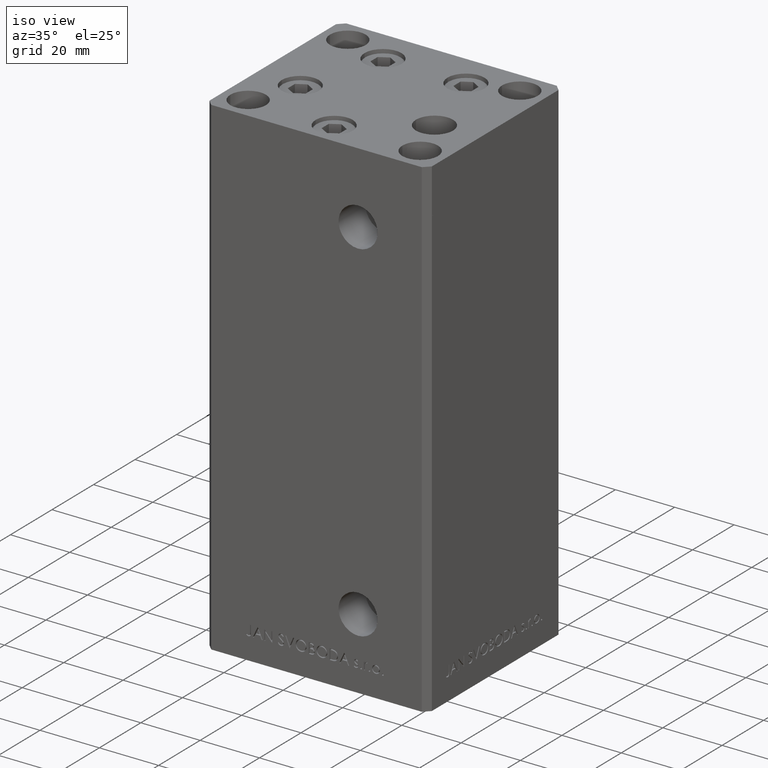
[diagram: clean part render]
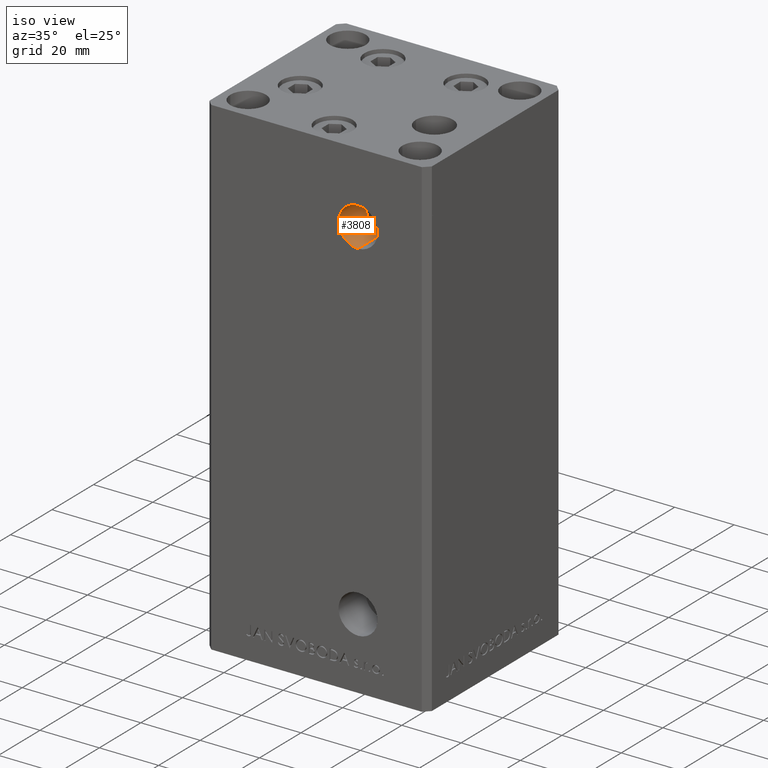
[diagram: same view with one face highlighted and labeled with its STEP entity id]
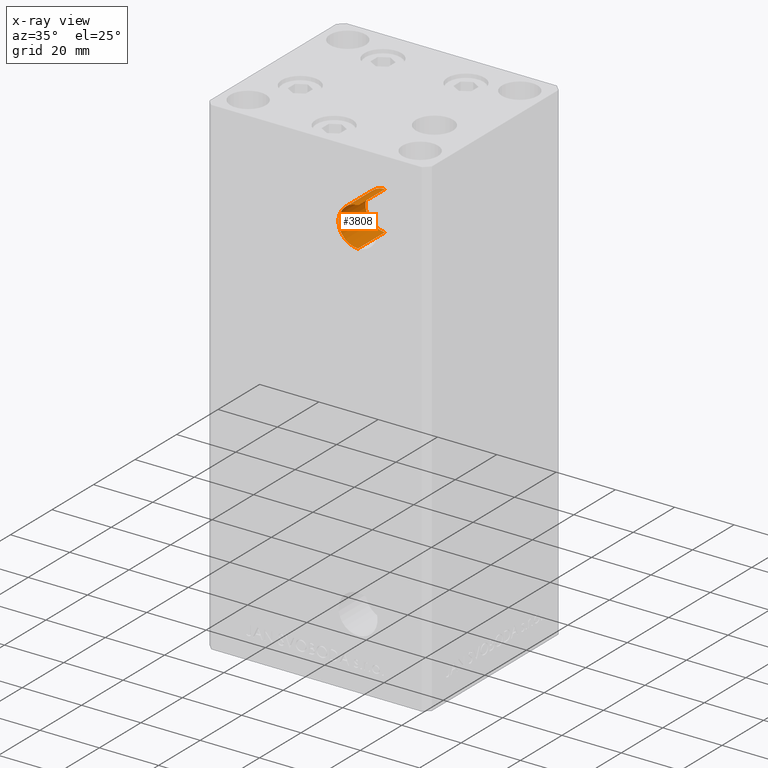
[diagram: x-ray of the same camera — body ghosted, the highlighted face saturated]
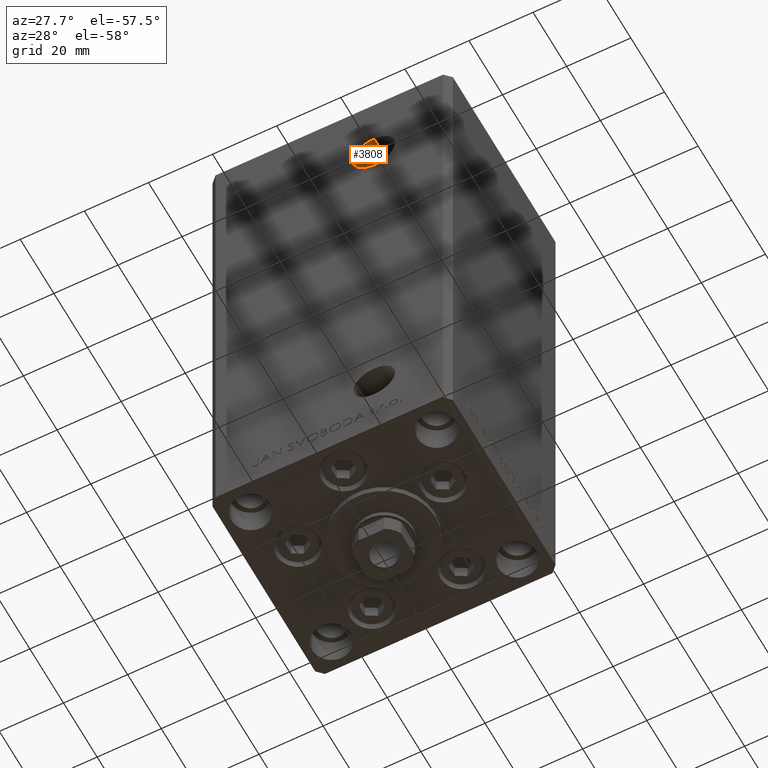
[diagram: same view with one face highlighted and labeled with its STEP entity id]
A machine part, iso view. The second image highlights one B-rep face of the part: STEP entity #3808.
The next image is the same camera in x-ray: the body ghosted, the highlighted face saturated — about 0% of this face is hidden behind the body in this view.
A second angle (auxiliary view) of the same face is appended — the face is thin or edge-on in the first view.
In plain terms, the highlighted cylindrical surface (edge-blend (fillet) strip) has radius 6.58 mm, axis along (-0, -1, -0).
Its self-contained STEP definition (entity closure, byte-faithful):
#51 = ORIENTED_EDGE ( 'NONE', *, *, #44131, .F. ) ;
#799 = DIRECTION ( 'NONE',  ( -0.000000000000000000, -1.000000000000000000, -0.000000000000000000 ) ) ;
#856 = CARTESIAN_POINT ( 'NONE',  ( 13.99999999999999112, -32.50000000000000000, 120.4200000000000017 ) ) ;
#1381 = CARTESIAN_POINT ( 'NONE',  ( 13.99999999999999112, -32.50000000000000000, 127.0000000000000000 ) ) ;
#1488 = CIRCLE ( 'NONE', #14339, 6.580000000000002736 ) ;
#2355 = FACE_OUTER_BOUND ( 'NONE', #42652, .T. ) ;
#3808 = ADVANCED_FACE ( 'NONE', ( #2355 ), #14420, .F. ) ;
#3893 = CIRCLE ( 'NONE', #24001, 6.580000000000002736 ) ;
#4791 = CARTESIAN_POINT ( 'NONE',  ( 13.99999999999999112, -19.50000000000000355, 120.4200000000000017 ) ) ;
#5408 = DIRECTION ( 'NONE',  ( -0.000000000000000000, 1.000000000000000000, -0.000000000000000000 ) ) ;
#7564 = VERTEX_POINT ( 'NONE', #856 ) ;
#7767 = DIRECTION ( 'NONE',  ( -0.000000000000000000, 1.000000000000000000, -0.000000000000000000 ) ) ;
#10595 = CARTESIAN_POINT ( 'NONE',  ( 13.99999999999999112, -19.50000000000000355, 133.5800000000000125 ) ) ;
#10654 = CARTESIAN_POINT ( 'NONE',  ( 13.99999999999999112, -19.50000000000000355, 127.0000000000000000 ) ) ;
#14339 = AXIS2_PLACEMENT_3D ( 'NONE', #38413, #7767, #26109 ) ;
#14420 = CYLINDRICAL_SURFACE ( 'NONE', #37191, 6.580000000000002736 ) ;
#15074 = ORIENTED_EDGE ( 'NONE', *, *, #20531, .T. ) ;
#17929 = DIRECTION ( 'NONE',  ( 0.000000000000000000, 0.000000000000000000, -1.000000000000000000 ) ) ;
#18997 = EDGE_CURVE ( 'NONE', #42597, #31384, #24897, .T. ) ;
#19405 = LINE ( 'NONE', #19902, #36352 ) ;
#19902 = CARTESIAN_POINT ( 'NONE',  ( 13.99999999999999112, -19.50000000000000355, 120.4200000000000017 ) ) ;
#20098 = EDGE_CURVE ( 'NONE', #7564, #31384, #3893, .T. ) ;
#20531 = EDGE_CURVE ( 'NONE', #43638, #42597, #1488, .T. ) ;
#21466 = ORIENTED_EDGE ( 'NONE', *, *, #18997, .T. ) ;
#24001 = AXIS2_PLACEMENT_3D ( 'NONE', #1381, #5408, #44086 ) ;
#24061 = CARTESIAN_POINT ( 'NONE',  ( 13.99999999999999112, -32.50000000000000000, 133.5800000000000125 ) ) ;
#24897 = LINE ( 'NONE', #29403, #33554 ) ;
#26109 = DIRECTION ( 'NONE',  ( 0.000000000000000000, 0.000000000000000000, -1.000000000000000000 ) ) ;
#29403 = CARTESIAN_POINT ( 'NONE',  ( 13.99999999999999112, -19.50000000000000355, 133.5800000000000125 ) ) ;
#31384 = VERTEX_POINT ( 'NONE', #24061 ) ;
#33554 = VECTOR ( 'NONE', #48732, 1000.000000000000000 ) ;
#36352 = VECTOR ( 'NONE', #799, 1000.000000000000000 ) ;
#37191 = AXIS2_PLACEMENT_3D ( 'NONE', #10654, #45302, #17929 ) ;
#38413 = CARTESIAN_POINT ( 'NONE',  ( 13.99999999999999112, -19.50000000000000355, 127.0000000000000000 ) ) ;
#42597 = VERTEX_POINT ( 'NONE', #10595 ) ;
#42652 = EDGE_LOOP ( 'NONE', ( #15074, #21466, #46658, #51 ) ) ;
#43638 = VERTEX_POINT ( 'NONE', #4791 ) ;
#44086 = DIRECTION ( 'NONE',  ( 0.000000000000000000, 0.000000000000000000, -1.000000000000000000 ) ) ;
#44131 = EDGE_CURVE ( 'NONE', #43638, #7564, #19405, .T. ) ;
#45302 = DIRECTION ( 'NONE',  ( -0.000000000000000000, -1.000000000000000000, -0.000000000000000000 ) ) ;
#46658 = ORIENTED_EDGE ( 'NONE', *, *, #20098, .F. ) ;
#48732 = DIRECTION ( 'NONE',  ( -0.000000000000000000, -1.000000000000000000, -0.000000000000000000 ) ) ;